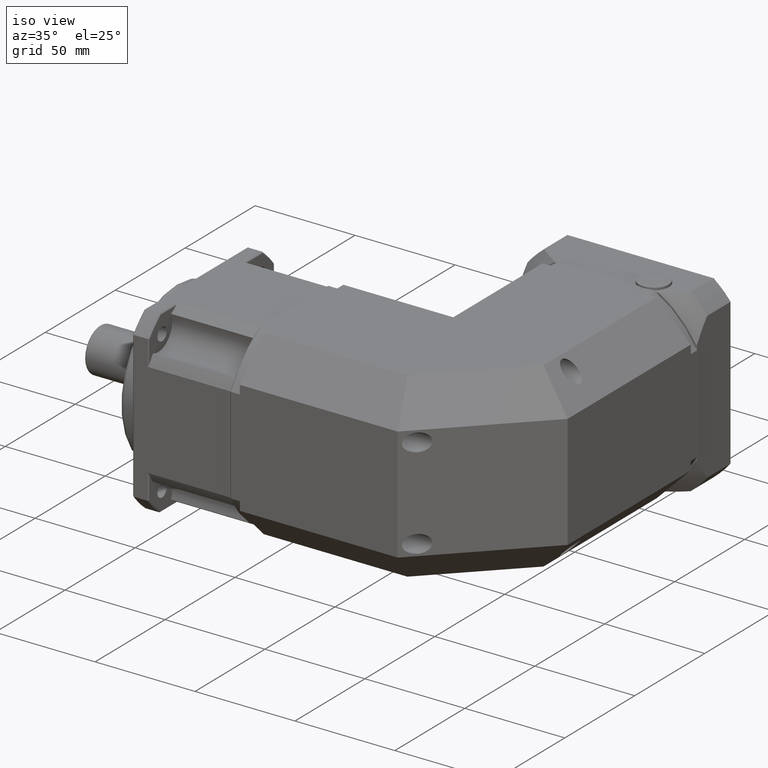
[diagram: clean part render]
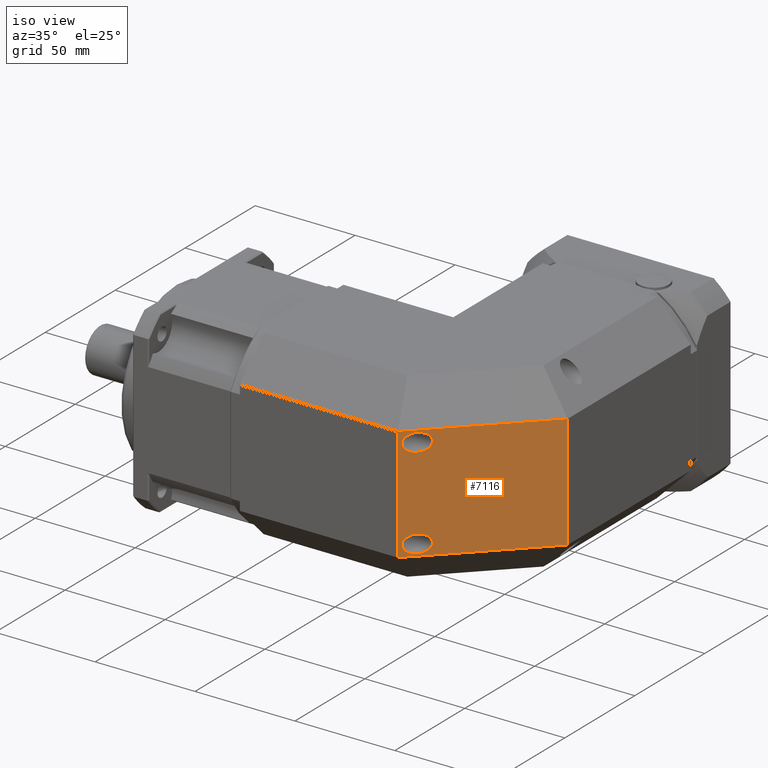
[diagram: same view with one face highlighted and labeled with its STEP entity id]
A machine part, iso view. The second image highlights one B-rep face of the part: STEP entity #7116.
In plain terms, the highlighted planar face has unit normal (0.7071, -0.7071, -0).
Its self-contained STEP definition (entity closure, byte-faithful):
#88=ELLIPSE('',#7853,6.36396103067893,4.5);
#89=ELLIPSE('',#7854,6.36396103067893,4.5);
#351=LINE('',#11754,#734);
#372=LINE('',#11819,#755);
#373=LINE('',#11821,#756);
#374=LINE('',#11822,#757);
#734=VECTOR('',#9324,57.);
#755=VECTOR('',#9383,70.7106781186548);
#756=VECTOR('',#9384,56.9999999999709);
#757=VECTOR('',#9385,70.7106781186548);
#1311=FACE_BOUND('',#2233,.T.);
#1312=FACE_BOUND('',#2234,.T.);
#1644=FACE_OUTER_BOUND('',#2232,.T.);
#2232=EDGE_LOOP('',(#5385,#5386,#5387,#5388));
#2233=EDGE_LOOP('',(#5389));
#2234=EDGE_LOOP('',(#5390));
#3248=VERTEX_POINT('',#11751);
#3249=VERTEX_POINT('',#11753);
#3274=VERTEX_POINT('',#11818);
#3275=VERTEX_POINT('',#11820);
#3276=VERTEX_POINT('',#11823);
#3277=VERTEX_POINT('',#11825);
#4018=EDGE_CURVE('',#3249,#3248,#351,.T.);
#4049=EDGE_CURVE('',#3274,#3248,#372,.T.);
#4050=EDGE_CURVE('',#3274,#3275,#373,.T.);
#4051=EDGE_CURVE('',#3249,#3275,#374,.T.);
#4052=EDGE_CURVE('',#3276,#3276,#88,.T.);
#4053=EDGE_CURVE('',#3277,#3277,#89,.T.);
#5385=ORIENTED_EDGE('',*,*,#4049,.F.);
#5386=ORIENTED_EDGE('',*,*,#4050,.T.);
#5387=ORIENTED_EDGE('',*,*,#4051,.F.);
#5388=ORIENTED_EDGE('',*,*,#4018,.T.);
#5389=ORIENTED_EDGE('',*,*,#4052,.T.);
#5390=ORIENTED_EDGE('',*,*,#4053,.T.);
#6389=PLANE('',#7852);
#7116=ADVANCED_FACE('',(#1644,#1311,#1312),#6389,.T.);
#7852=AXIS2_PLACEMENT_3D('',#11817,#9381,#9382);
#7853=AXIS2_PLACEMENT_3D('',#11824,#9386,#9387);
#7854=AXIS2_PLACEMENT_3D('',#11826,#9388,#9389);
#9324=DIRECTION('',(-5.78496549379608E-15,3.2803312327246E-16,-1.));
#9381=DIRECTION('center_axis',(0.707106781186547,-0.707106781186548,-4.32254277551314E-15));
#9382=DIRECTION('ref_axis',(5.6843418860808E-15,0.,1.));
#9383=DIRECTION('',(-0.707106781186548,-0.707106781186547,3.99666398993155E-15));
#9384=DIRECTION('',(5.78496549379608E-15,-3.2803312327246E-16,1.));
#9385=DIRECTION('',(0.707106781186548,0.707106781186547,-3.85863388367364E-15));
#9386=DIRECTION('center_axis',(-0.707106781186547,0.707106781186548,4.32254277551314E-15));
#9387=DIRECTION('ref_axis',(-0.707106781186548,-0.707106781186547,3.99666398993155E-15));
#9388=DIRECTION('center_axis',(-0.707106781186547,0.707106781186548,4.32254277551314E-15));
#9389=DIRECTION('ref_axis',(-0.707106781186548,-0.707106781186547,3.99666398993155E-15));
#11751=CARTESIAN_POINT('',(70.0754989608241,66.1914711004037,-24.9938984203016));
#11753=CARTESIAN_POINT('',(70.0754989608244,66.1914711004037,32.0061015796984));
#11754=CARTESIAN_POINT('',(70.0754989608244,66.1914711004037,26.2561015796984));
#11817=CARTESIAN_POINT('Origin',(95.0754989608244,91.1914711004037,26.2561015796983));
#11818=CARTESIAN_POINT('',(120.075498960824,116.191471100404,-24.9938984203019));
#11819=CARTESIAN_POINT('',(61.575498960824,57.6914711004038,-24.9938984203015));
#11820=CARTESIAN_POINT('',(120.075498960824,116.191471100404,32.006101579669));
#11821=CARTESIAN_POINT('',(120.075498960824,116.191471100404,26.2561015796982));
#11822=CARTESIAN_POINT('',(84.3254989608244,80.4414711004037,32.0061015796983));
#11823=CARTESIAN_POINT('',(80.3032822920238,76.4192544316034,-19.4563984203016));
#11824=CARTESIAN_POINT('Origin',(75.8032822920238,71.9192544316034,-19.4563984203016));
#11825=CARTESIAN_POINT('',(80.303282292024,76.4192544316034,26.4686015796984));
#11826=CARTESIAN_POINT('Origin',(75.803282292024,71.9192544316034,26.4686015796984));